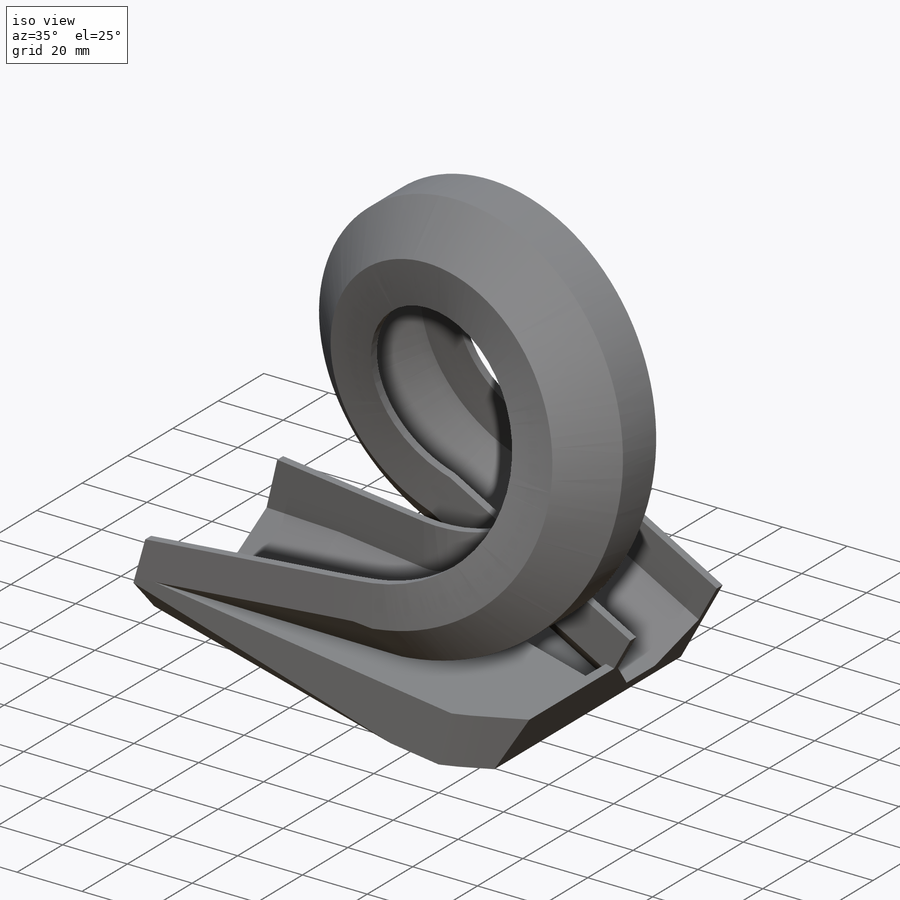
[diagram: iso view]
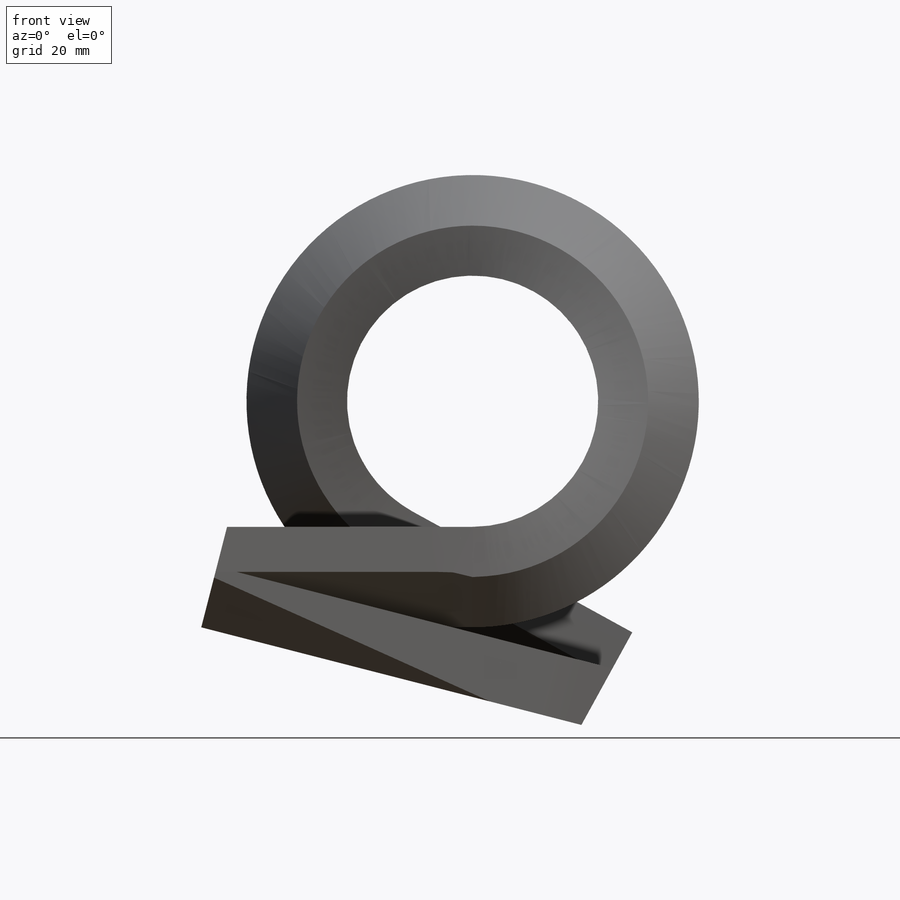
[diagram: front view]
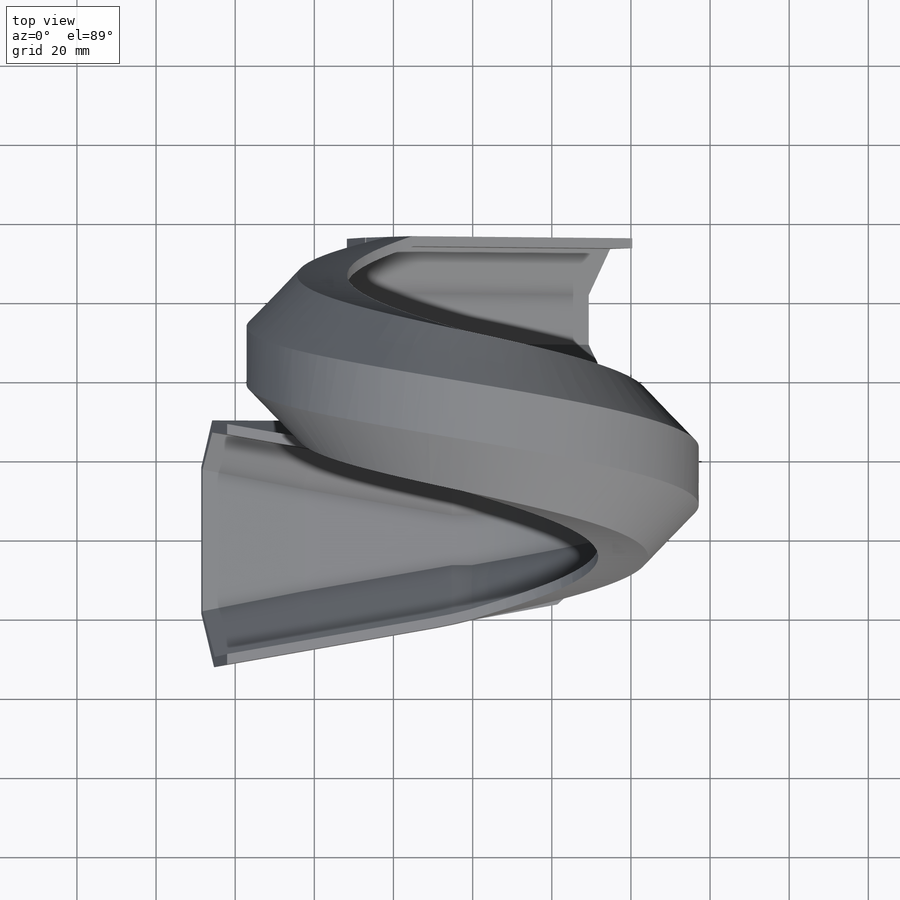
[diagram: top view]
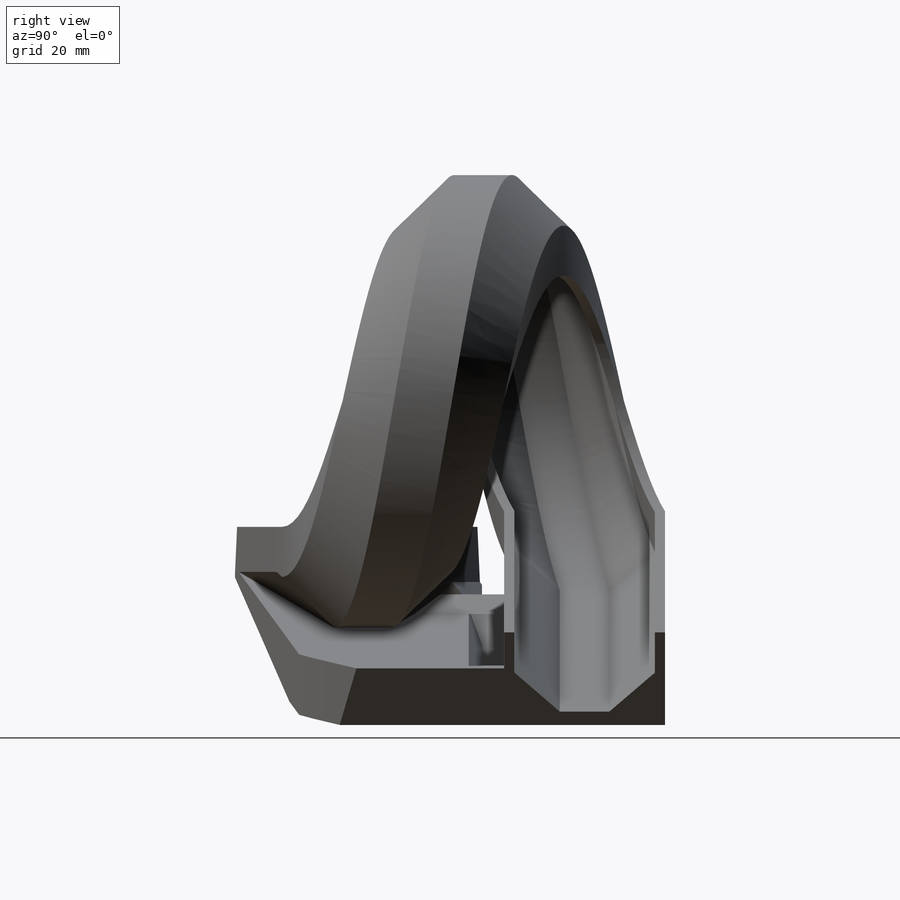
[diagram: right view]
SOLIDWORKS PART (.sldprt)
format: sldprt  version: not decoded by parser v0  size: 1,240,576 bytes
history: native  units: mm
features: sketch x24, extrude x14, chamfer x4, cut_extrude x4, sweep x3, fillet x2, material x1, helix x1, shell x1 (+13 scaffold rows collapsed)
feature tree (67):
  scaffold x13  (default folders/planes/origin — collapsed)
  material  "Material <not specified>"
  sketch  "Sketch7"  dims[D1=110.0mm]
  helix  "Helix/Spiral2"  Pitch=56.0832mm
  sketch  "Sketch8"  dims[c1.D1=~24.853565mm c1.D2=~19.079489mm c2.D1=40.64mm c2.D2=25.4mm]
  sweep  "Sweep2"
  chamfer  "Chamfer7"  Distance=12.7mm Angle=45deg
  sketch  "Sketch83"  dims[D1=50.8mm D2=2.54mm D3=40.386mm]
  extrude  "bottom_surface"  Depth=25.4mm
  sketch  "Sketch68"  dims[D1=0.0mm]
  extrude  "Boss-Extrude38"  Depth=63.5mm
  sketch  "Sketch69"  dims[D1=0.0mm]
  extrude  "Boss-Extrude39"  Depth=5.08mm
  sketch  "Sketch76"  dims[c1.D1=40.64mm c2.D1=100.0deg c2.D2=40.64mm c3.D2=100.0deg c3.D3=63.5mm]
  extrude  "Boss-Extrude40"  [1 undecoded]
  sketch  "Sketch79"  dims[D1=0.0mm]
  sketch  "Sketch80"
  sweep  "Cut-Sweep4"
  sketch  "Sketch81"  dims[D1=0.0mm]
  sketch  "Sketch82"
  sweep  "Cut-Sweep5"
  fillet  "Fillet10"  Radius=22.86mm
  fillet  "Fillet11"  Radius=119.38mm
  shell  "Shell3"  Thickness=2.54mm
  sketch  "Sketch87"  dims[D1=~14.643797mm]
  extrude  "Boss-Extrude42"  [1 undecoded]
  sketch  "Sketch88"
  extrude  "Boss-Extrude43"  [1 undecoded]
  sketch  "Sketch89"
  extrude  "Boss-Extrude44"  [1 undecoded]
  sketch  "Sketch90"  dims[D1=1.27mm]
  extrude  "Boss-Extrude46"  [1 undecoded]
  sketch  "Sketch94"  dims[D1=1.27mm D2=1.27mm D3=1.27mm]
  extrude  "Boss-Extrude50"  Depth=2.54mm
  sketch  "Sketch95"
  extrude  "Boss-Extrude51"  [1 undecoded]
  sketch  "Sketch96"
  cut_extrude  "Cut-Extrude1"  [1 undecoded]
  sketch  "Sketch97"  dims[D1=0.0mm]
  cut_extrude  "Cut-Extrude2"  [1 undecoded]
  sketch  "Sketch98"
  extrude  "Boss-Extrude52"  [1 undecoded]
  sketch  "Sketch99"
  cut_extrude  "Cut-Extrude3"  [1 undecoded]
  sketch  "Sketch100"
  extrude  "Boss-Extrude53"  [1 undecoded]
  sketch  "Sketch101"
  extrude  "Boss-Extrude54"  [1 undecoded]
  sketch  "Sketch103"  dims[D1=1.27mm]
  extrude  "Boss-Extrude59"  [1 undecoded]
  sketch  "Sketch105"
  cut_extrude  "Cut-Extrude4"  [1 undecoded]
  chamfer  "Chamfer10"  Distance=25.4mm
  chamfer  "Chamfer11"  Distance=25.4mm
  chamfer  "Chamfer12"  Distance=25.4mm
decode coverage: 25 of 53 modeling features carry decoded parameters
note: ~ marks probable driven/reference dimensions
note: 14 parameter values undecoded
summary: no parameter record found for 14 features
note: suppression state not decoded; provenance and decode notes live in map.json
